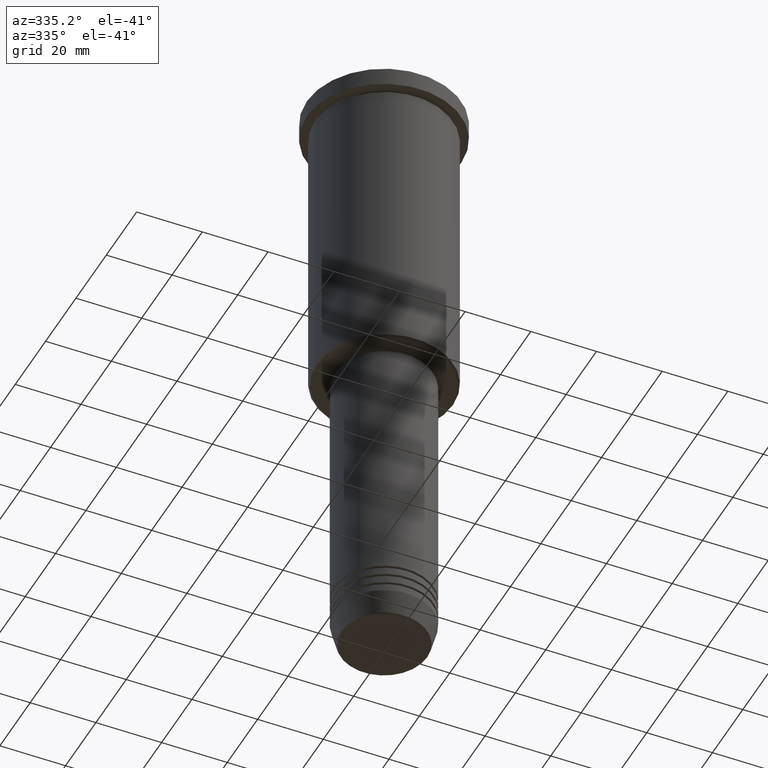
[diagram: clean part render]
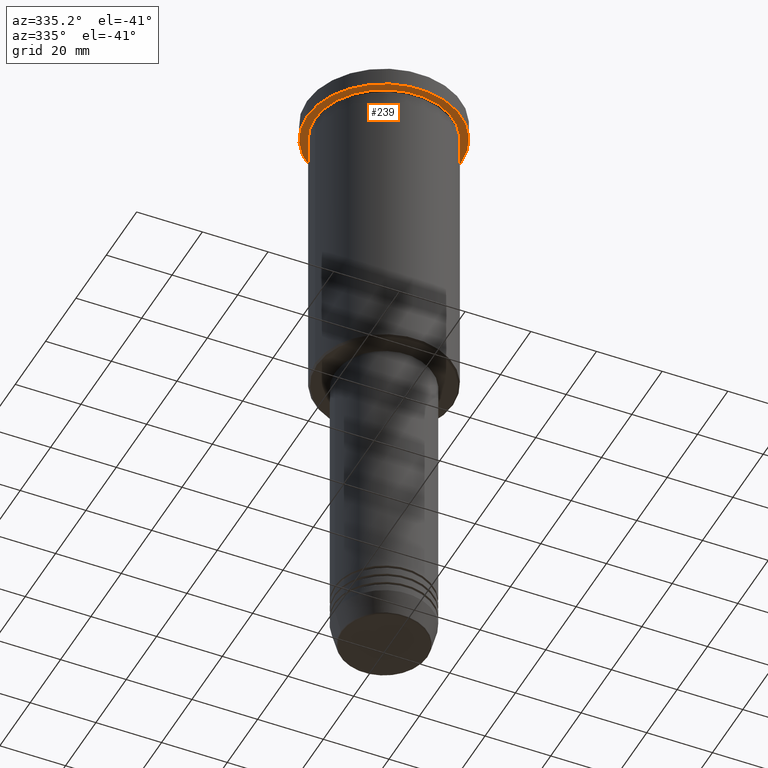
[diagram: same view with one face highlighted and labeled with its STEP entity id]
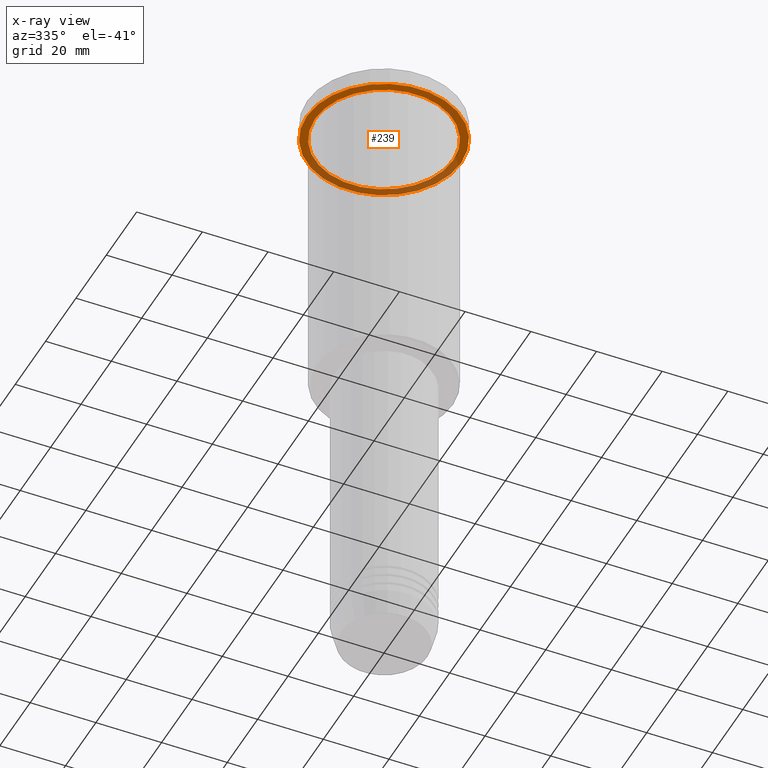
[diagram: x-ray of the same camera — body ghosted, the highlighted face saturated]
A machine part, auxiliary view. The second image highlights one B-rep face of the part: STEP entity #239.
The next image is the same camera in x-ray: the body ghosted, the highlighted face saturated — about 37% of this face is hidden behind the body in this view.
In plain terms, the highlighted planar face has unit normal (0, 0, -1).
Its self-contained STEP definition (entity closure, byte-faithful):
#26 = EDGE_CURVE ( 'NONE', #592, #744, #512, .T. ) ;
#74 = AXIS2_PLACEMENT_3D ( 'NONE', #1106, #995, #1092 ) ;
#116 = AXIS2_PLACEMENT_3D ( 'NONE', #306, #580, #1108 ) ;
#144 = EDGE_LOOP ( 'NONE', ( #540, #691 ) ) ;
#160 = ORIENTED_EDGE ( 'NONE', *, *, #793, .T. ) ;
#164 = FACE_BOUND ( 'NONE', #846, .T. ) ;
#169 = AXIS2_PLACEMENT_3D ( 'NONE', #361, #268, #191 ) ;
#191 = DIRECTION ( 'NONE',  ( 1.000000000000000000, 0.000000000000000000, 0.000000000000000000 ) ) ;
#239 = ADVANCED_FACE ( 'NONE', ( #164, #1154 ), #601, .T. ) ;
#268 = DIRECTION ( 'NONE',  ( -0.000000000000000000, -0.000000000000000000, 1.000000000000000000 ) ) ;
#306 = CARTESIAN_POINT ( 'NONE',  ( 0.000000000000000000, 0.000000000000000000, -5.999999999999994671 ) ) ;
#326 = DIRECTION ( 'NONE',  ( -0.000000000000000000, -0.000000000000000000, 1.000000000000000000 ) ) ;
#357 = DIRECTION ( 'NONE',  ( -1.000000000000000000, 0.000000000000000000, -0.000000000000000000 ) ) ;
#361 = CARTESIAN_POINT ( 'NONE',  ( 0.000000000000000000, 0.000000000000000000, -5.999999999999994671 ) ) ;
#436 = CARTESIAN_POINT ( 'NONE',  ( -21.00000000000000000, 0.000000000000000000, -5.999999999999994671 ) ) ;
#512 = CIRCLE ( 'NONE', #74, 23.50000000000000000 ) ;
#540 = ORIENTED_EDGE ( 'NONE', *, *, #26, .F. ) ;
#580 = DIRECTION ( 'NONE',  ( -0.000000000000000000, -0.000000000000000000, 1.000000000000000000 ) ) ;
#592 = VERTEX_POINT ( 'NONE', #1075 ) ;
#597 = EDGE_CURVE ( 'NONE', #744, #592, #926, .T. ) ;
#601 = PLANE ( 'NONE',  #1051 ) ;
#622 = CIRCLE ( 'NONE', #116, 21.00000000000000000 ) ;
#691 = ORIENTED_EDGE ( 'NONE', *, *, #597, .F. ) ;
#698 = DIRECTION ( 'NONE',  ( -1.000000000000000000, 0.000000000000000000, 0.000000000000000000 ) ) ;
#744 = VERTEX_POINT ( 'NONE', #1013 ) ;
#793 = EDGE_CURVE ( 'NONE', #1126, #936, #622, .T. ) ;
#846 = EDGE_LOOP ( 'NONE', ( #160, #1147 ) ) ;
#872 = CARTESIAN_POINT ( 'NONE',  ( 0.000000000000000000, 0.000000000000000000, -5.999999999999994671 ) ) ;
#907 = CIRCLE ( 'NONE', #1178, 21.00000000000000000 ) ;
#926 = CIRCLE ( 'NONE', #169, 23.50000000000000000 ) ;
#932 = EDGE_CURVE ( 'NONE', #936, #1126, #907, .T. ) ;
#936 = VERTEX_POINT ( 'NONE', #1054 ) ;
#952 = CARTESIAN_POINT ( 'NONE',  ( 0.000000000000000000, 23.50000000000000000, -5.999999999999994671 ) ) ;
#995 = DIRECTION ( 'NONE',  ( -0.000000000000000000, -0.000000000000000000, 1.000000000000000000 ) ) ;
#1013 = CARTESIAN_POINT ( 'NONE',  ( -23.50000000000000000, 2.877919977996280320E-15, -5.999999999999994671 ) ) ;
#1051 = AXIS2_PLACEMENT_3D ( 'NONE', #952, #1140, #357 ) ;
#1054 = CARTESIAN_POINT ( 'NONE',  ( 21.00000000000000000, 2.571758278209441661E-15, -5.999999999999994671 ) ) ;
#1075 = CARTESIAN_POINT ( 'NONE',  ( 23.50000000000000000, 0.000000000000000000, -5.999999999999994671 ) ) ;
#1092 = DIRECTION ( 'NONE',  ( 1.000000000000000000, 0.000000000000000000, 0.000000000000000000 ) ) ;
#1106 = CARTESIAN_POINT ( 'NONE',  ( 0.000000000000000000, 0.000000000000000000, -5.999999999999994671 ) ) ;
#1108 = DIRECTION ( 'NONE',  ( -1.000000000000000000, 0.000000000000000000, 0.000000000000000000 ) ) ;
#1126 = VERTEX_POINT ( 'NONE', #436 ) ;
#1140 = DIRECTION ( 'NONE',  ( 0.000000000000000000, 0.000000000000000000, -1.000000000000000000 ) ) ;
#1147 = ORIENTED_EDGE ( 'NONE', *, *, #932, .T. ) ;
#1154 = FACE_OUTER_BOUND ( 'NONE', #144, .T. ) ;
#1178 = AXIS2_PLACEMENT_3D ( 'NONE', #872, #326, #698 ) ;